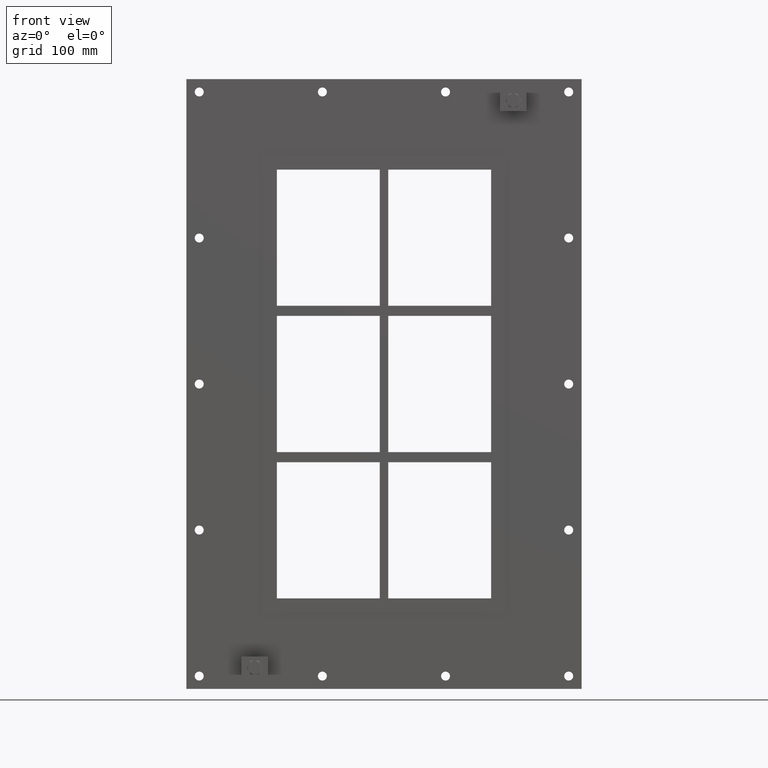
[diagram: clean part render]
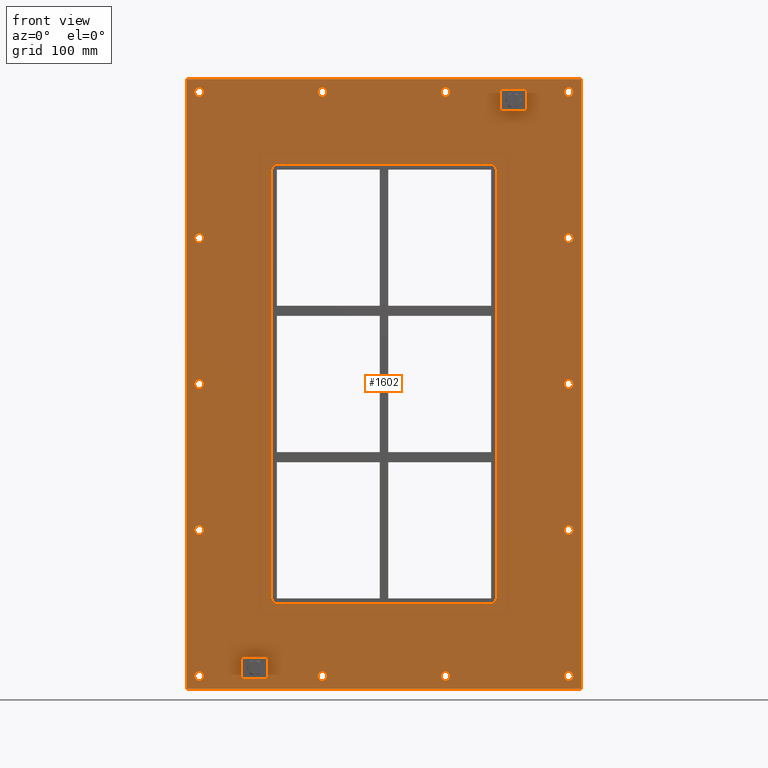
[diagram: same view with one face highlighted and labeled with its STEP entity id]
A machine part, front view. The second image highlights one B-rep face of the part: STEP entity #1602.
In plain terms, the highlighted planar face has unit normal (0, 1, 0).
Its self-contained STEP definition (entity closure, byte-faithful):
#84=CARTESIAN_POINT('',(-211.25000000000006,0.0,-342.25000000000011));
#85=VERTEX_POINT('',#84);
#86=CARTESIAN_POINT('',(-216.50000000000006,0.0,-342.25000000000011));
#87=DIRECTION('',(0.0,1.0,0.0));
#88=DIRECTION('',(1.0,0.0,0.0));
#89=AXIS2_PLACEMENT_3D('',#86,#87,#88);
#90=CIRCLE('',#89,5.25);
#91=EDGE_CURVE('',#85,#85,#90,.T.);
#112=CARTESIAN_POINT('',(221.64999999999998,0.0,-171.15000000000009));
#113=VERTEX_POINT('',#112);
#114=CARTESIAN_POINT('',(216.40000000000001,0.0,-171.15000000000009));
#115=DIRECTION('',(0.0,1.0,0.0));
#116=DIRECTION('',(1.0,0.0,0.0));
#117=AXIS2_PLACEMENT_3D('',#114,#115,#116);
#118=CIRCLE('',#117,5.25);
#119=EDGE_CURVE('',#113,#113,#118,.T.);
#140=CARTESIAN_POINT('',(-211.25000000000006,0.0,-171.15000000000009));
#141=VERTEX_POINT('',#140);
#142=CARTESIAN_POINT('',(-216.50000000000006,0.0,-171.15000000000009));
#143=DIRECTION('',(0.0,1.0,0.0));
#144=DIRECTION('',(1.0,0.0,0.0));
#145=AXIS2_PLACEMENT_3D('',#142,#143,#144);
#146=CIRCLE('',#145,5.25);
#147=EDGE_CURVE('',#141,#141,#146,.T.);
#168=CARTESIAN_POINT('',(221.64999999999998,0.0,-0.050000000000097));
#169=VERTEX_POINT('',#168);
#170=CARTESIAN_POINT('',(216.40000000000001,0.0,-0.050000000000097));
#171=DIRECTION('',(0.0,1.0,0.0));
#172=DIRECTION('',(1.0,0.0,0.0));
#173=AXIS2_PLACEMENT_3D('',#170,#171,#172);
#174=CIRCLE('',#173,5.25);
#175=EDGE_CURVE('',#169,#169,#174,.T.);
#196=CARTESIAN_POINT('',(-211.25000000000006,0.0,-0.050000000000097));
#197=VERTEX_POINT('',#196);
#198=CARTESIAN_POINT('',(-216.50000000000006,0.0,-0.050000000000097));
#199=DIRECTION('',(0.0,1.0,0.0));
#200=DIRECTION('',(1.0,0.0,0.0));
#201=AXIS2_PLACEMENT_3D('',#198,#199,#200);
#202=CIRCLE('',#201,5.25);
#203=EDGE_CURVE('',#197,#197,#202,.T.);
#224=CARTESIAN_POINT('',(221.64999999999998,0.0,171.0499999999999));
#225=VERTEX_POINT('',#224);
#226=CARTESIAN_POINT('',(216.40000000000001,0.0,171.0499999999999));
#227=DIRECTION('',(0.0,1.0,0.0));
#228=DIRECTION('',(1.0,0.0,0.0));
#229=AXIS2_PLACEMENT_3D('',#226,#227,#228);
#230=CIRCLE('',#229,5.25);
#231=EDGE_CURVE('',#225,#225,#230,.T.);
#252=CARTESIAN_POINT('',(-211.25000000000006,0.0,171.0499999999999));
#253=VERTEX_POINT('',#252);
#254=CARTESIAN_POINT('',(-216.50000000000006,0.0,171.0499999999999));
#255=DIRECTION('',(0.0,1.0,0.0));
#256=DIRECTION('',(1.0,0.0,0.0));
#257=AXIS2_PLACEMENT_3D('',#254,#255,#256);
#258=CIRCLE('',#257,5.25);
#259=EDGE_CURVE('',#253,#253,#258,.T.);
#280=CARTESIAN_POINT('',(-66.950000000000045,0.0,342.14999999999986));
#281=VERTEX_POINT('',#280);
#282=CARTESIAN_POINT('',(-72.200000000000017,0.0,342.14999999999986));
#283=DIRECTION('',(0.0,1.0,0.0));
#284=DIRECTION('',(1.0,0.0,0.0));
#285=AXIS2_PLACEMENT_3D('',#282,#283,#284);
#286=CIRCLE('',#285,5.25);
#287=EDGE_CURVE('',#281,#281,#286,.T.);
#308=CARTESIAN_POINT('',(-66.950000000000045,0.0,-342.25000000000011));
#309=VERTEX_POINT('',#308);
#310=CARTESIAN_POINT('',(-72.200000000000017,0.0,-342.25000000000011));
#311=DIRECTION('',(0.0,1.0,0.0));
#312=DIRECTION('',(1.0,0.0,0.0));
#313=AXIS2_PLACEMENT_3D('',#310,#311,#312);
#314=CIRCLE('',#313,5.25);
#315=EDGE_CURVE('',#309,#309,#314,.T.);
#336=CARTESIAN_POINT('',(77.34999999999998,0.0,342.14999999999986));
#337=VERTEX_POINT('',#336);
#338=CARTESIAN_POINT('',(72.099999999999994,0.0,342.14999999999986));
#339=DIRECTION('',(0.0,1.0,0.0));
#340=DIRECTION('',(1.0,0.0,0.0));
#341=AXIS2_PLACEMENT_3D('',#338,#339,#340);
#342=CIRCLE('',#341,5.25);
#343=EDGE_CURVE('',#337,#337,#342,.T.);
#364=CARTESIAN_POINT('',(77.34999999999998,0.0,-342.25000000000011));
#365=VERTEX_POINT('',#364);
#366=CARTESIAN_POINT('',(72.099999999999994,0.0,-342.25000000000011));
#367=DIRECTION('',(0.0,1.0,0.0));
#368=DIRECTION('',(1.0,0.0,0.0));
#369=AXIS2_PLACEMENT_3D('',#366,#367,#368);
#370=CIRCLE('',#369,5.25);
#371=EDGE_CURVE('',#365,#365,#370,.T.);
#392=CARTESIAN_POINT('',(221.64999999999998,0.0,-342.25000000000011));
#393=VERTEX_POINT('',#392);
#394=CARTESIAN_POINT('',(216.40000000000001,0.0,-342.25000000000011));
#395=DIRECTION('',(0.0,1.0,0.0));
#396=DIRECTION('',(1.0,0.0,0.0));
#397=AXIS2_PLACEMENT_3D('',#394,#395,#396);
#398=CIRCLE('',#397,5.25);
#399=EDGE_CURVE('',#393,#393,#398,.T.);
#420=CARTESIAN_POINT('',(-211.25000000000006,0.0,342.14999999999986));
#421=VERTEX_POINT('',#420);
#422=CARTESIAN_POINT('',(-216.50000000000006,0.0,342.14999999999986));
#423=DIRECTION('',(0.0,1.0,0.0));
#424=DIRECTION('',(1.0,0.0,0.0));
#425=AXIS2_PLACEMENT_3D('',#422,#423,#424);
#426=CIRCLE('',#425,5.25);
#427=EDGE_CURVE('',#421,#421,#426,.T.);
#448=CARTESIAN_POINT('',(221.64999999999998,0.0,342.14999999999986));
#449=VERTEX_POINT('',#448);
#450=CARTESIAN_POINT('',(216.40000000000001,0.0,342.14999999999986));
#451=DIRECTION('',(0.0,1.0,0.0));
#452=DIRECTION('',(1.0,0.0,0.0));
#453=AXIS2_PLACEMENT_3D('',#450,#451,#452);
#454=CIRCLE('',#453,5.25);
#455=EDGE_CURVE('',#449,#449,#454,.T.);
#1451=CARTESIAN_POINT('',(1.448240E-014,0.0,0.0));
#1452=DIRECTION('',(0.0,1.0,0.0));
#1453=DIRECTION('',(0.0,0.0,1.0));
#1454=AXIS2_PLACEMENT_3D('',#1451,#1452,#1453);
#1455=PLANE('',#1454);
#1456=CARTESIAN_POINT('',(-231.49999999999994,0.0,357.25));
#1457=VERTEX_POINT('',#1456);
#1458=CARTESIAN_POINT('',(231.5,0.0,357.25));
#1459=VERTEX_POINT('',#1458);
#1460=CARTESIAN_POINT('',(-231.49999999999994,0.0,357.25));
#1461=DIRECTION('',(1.0,0.0,0.0));
#1462=VECTOR('',#1461,463.0);
#1463=LINE('',#1460,#1462);
#1464=EDGE_CURVE('',#1457,#1459,#1463,.T.);
#1465=ORIENTED_EDGE('',*,*,#1464,.F.);
#1466=CARTESIAN_POINT('',(-231.49999999999994,0.0,-357.25));
#1467=VERTEX_POINT('',#1466);
#1468=CARTESIAN_POINT('',(-231.49999999999994,0.0,-357.25));
#1469=DIRECTION('',(0.0,0.0,1.0));
#1470=VECTOR('',#1469,714.5);
#1471=LINE('',#1468,#1470);
#1472=EDGE_CURVE('',#1467,#1457,#1471,.T.);
#1473=ORIENTED_EDGE('',*,*,#1472,.F.);
#1474=CARTESIAN_POINT('',(231.5,0.0,-357.25));
#1475=VERTEX_POINT('',#1474);
#1476=CARTESIAN_POINT('',(231.5,0.0,-357.25));
#1477=DIRECTION('',(-1.0,0.0,0.0));
#1478=VECTOR('',#1477,463.0);
#1479=LINE('',#1476,#1478);
#1480=EDGE_CURVE('',#1475,#1467,#1479,.T.);
#1481=ORIENTED_EDGE('',*,*,#1480,.F.);
#1482=CARTESIAN_POINT('',(231.5,0.0,357.25));
#1483=DIRECTION('',(0.0,0.0,-1.0));
#1484=VECTOR('',#1483,714.5);
#1485=LINE('',#1482,#1484);
#1486=EDGE_CURVE('',#1459,#1475,#1485,.T.);
#1487=ORIENTED_EDGE('',*,*,#1486,.F.);
#1488=EDGE_LOOP('',(#1465,#1473,#1481,#1487));
#1489=FACE_OUTER_BOUND('',#1488,.T.);
#1490=ORIENTED_EDGE('',*,*,#91,.T.);
#1491=EDGE_LOOP('',(#1490));
#1492=FACE_BOUND('',#1491,.T.);
#1493=ORIENTED_EDGE('',*,*,#119,.T.);
#1494=EDGE_LOOP('',(#1493));
#1495=FACE_BOUND('',#1494,.T.);
#1496=ORIENTED_EDGE('',*,*,#147,.T.);
#1497=EDGE_LOOP('',(#1496));
#1498=FACE_BOUND('',#1497,.T.);
#1499=ORIENTED_EDGE('',*,*,#175,.T.);
#1500=EDGE_LOOP('',(#1499));
#1501=FACE_BOUND('',#1500,.T.);
#1502=ORIENTED_EDGE('',*,*,#203,.T.);
#1503=EDGE_LOOP('',(#1502));
#1504=FACE_BOUND('',#1503,.T.);
#1505=ORIENTED_EDGE('',*,*,#231,.T.);
#1506=EDGE_LOOP('',(#1505));
#1507=FACE_BOUND('',#1506,.T.);
#1508=ORIENTED_EDGE('',*,*,#259,.T.);
#1509=EDGE_LOOP('',(#1508));
#1510=FACE_BOUND('',#1509,.T.);
#1511=ORIENTED_EDGE('',*,*,#287,.T.);
#1512=EDGE_LOOP('',(#1511));
#1513=FACE_BOUND('',#1512,.T.);
#1514=ORIENTED_EDGE('',*,*,#315,.T.);
#1515=EDGE_LOOP('',(#1514));
#1516=FACE_BOUND('',#1515,.T.);
#1517=ORIENTED_EDGE('',*,*,#343,.T.);
#1518=EDGE_LOOP('',(#1517));
#1519=FACE_BOUND('',#1518,.T.);
#1520=ORIENTED_EDGE('',*,*,#371,.T.);
#1521=EDGE_LOOP('',(#1520));
#1522=FACE_BOUND('',#1521,.T.);
#1523=ORIENTED_EDGE('',*,*,#399,.T.);
#1524=EDGE_LOOP('',(#1523));
#1525=FACE_BOUND('',#1524,.T.);
#1526=ORIENTED_EDGE('',*,*,#427,.T.);
#1527=EDGE_LOOP('',(#1526));
#1528=FACE_BOUND('',#1527,.T.);
#1529=ORIENTED_EDGE('',*,*,#455,.T.);
#1530=EDGE_LOOP('',(#1529));
#1531=FACE_BOUND('',#1530,.T.);
#1532=CARTESIAN_POINT('',(-125.5,0.0,257.25));
#1533=VERTEX_POINT('',#1532);
#1534=CARTESIAN_POINT('',(-131.5,0.0,251.24999999999997));
#1535=VERTEX_POINT('',#1534);
#1536=CARTESIAN_POINT('',(-125.5,0.0,251.24999999999997));
#1537=DIRECTION('',(0.0,-1.0,0.0));
#1538=DIRECTION('',(-0.707106781186548,0.0,0.707106781186548));
#1539=AXIS2_PLACEMENT_3D('',#1536,#1537,#1538);
#1540=CIRCLE('',#1539,6.000000000000002);
#1541=EDGE_CURVE('',#1533,#1535,#1540,.T.);
#1542=ORIENTED_EDGE('',*,*,#1541,.F.);
#1543=CARTESIAN_POINT('',(125.5,0.0,257.25));
#1544=VERTEX_POINT('',#1543);
#1545=CARTESIAN_POINT('',(125.5,0.0,257.25));
#1546=DIRECTION('',(-1.0,0.0,0.0));
#1547=VECTOR('',#1546,251.0);
#1548=LINE('',#1545,#1547);
#1549=EDGE_CURVE('',#1544,#1533,#1548,.T.);
#1550=ORIENTED_EDGE('',*,*,#1549,.F.);
#1551=CARTESIAN_POINT('',(131.5,0.0,251.24999999999997));
#1552=VERTEX_POINT('',#1551);
#1553=CARTESIAN_POINT('',(125.5,0.0,251.24999999999997));
#1554=DIRECTION('',(0.0,-1.0,0.0));
#1555=DIRECTION('',(0.707106781186548,0.0,0.707106781186548));
#1556=AXIS2_PLACEMENT_3D('',#1553,#1554,#1555);
#1557=CIRCLE('',#1556,6.000000000000002);
#1558=EDGE_CURVE('',#1552,#1544,#1557,.T.);
#1559=ORIENTED_EDGE('',*,*,#1558,.F.);
#1560=CARTESIAN_POINT('',(131.5,0.0,-251.25000000000003));
#1561=VERTEX_POINT('',#1560);
#1562=CARTESIAN_POINT('',(131.5,0.0,-251.25000000000006));
#1563=DIRECTION('',(0.0,0.0,1.0));
#1564=VECTOR('',#1563,502.5);
#1565=LINE('',#1562,#1564);
#1566=EDGE_CURVE('',#1561,#1552,#1565,.T.);
#1567=ORIENTED_EDGE('',*,*,#1566,.F.);
#1568=CARTESIAN_POINT('',(125.5,0.0,-257.25000000000006));
#1569=VERTEX_POINT('',#1568);
#1570=CARTESIAN_POINT('',(125.5,0.0,-251.25000000000003));
#1571=DIRECTION('',(0.0,-1.0,0.0));
#1572=DIRECTION('',(0.707106781186548,0.0,-0.707106781186548));
#1573=AXIS2_PLACEMENT_3D('',#1570,#1571,#1572);
#1574=CIRCLE('',#1573,6.000000000000002);
#1575=EDGE_CURVE('',#1569,#1561,#1574,.T.);
#1576=ORIENTED_EDGE('',*,*,#1575,.F.);
#1577=CARTESIAN_POINT('',(-125.5,0.0,-257.25000000000006));
#1578=VERTEX_POINT('',#1577);
#1579=CARTESIAN_POINT('',(-125.49999999999999,0.0,-257.25000000000006));
#1580=DIRECTION('',(1.0,0.0,0.0));
#1581=VECTOR('',#1580,251.0);
#1582=LINE('',#1579,#1581);
#1583=EDGE_CURVE('',#1578,#1569,#1582,.T.);
#1584=ORIENTED_EDGE('',*,*,#1583,.F.);
#1585=CARTESIAN_POINT('',(-131.5,0.0,-251.25000000000003));
#1586=VERTEX_POINT('',#1585);
#1587=CARTESIAN_POINT('',(-125.5,0.0,-251.25000000000003));
#1588=DIRECTION('',(0.0,-1.0,0.0));
#1589=DIRECTION('',(-0.707106781186548,0.0,-0.707106781186548));
#1590=AXIS2_PLACEMENT_3D('',#1587,#1588,#1589);
#1591=CIRCLE('',#1590,6.000000000000002);
#1592=EDGE_CURVE('',#1586,#1578,#1591,.T.);
#1593=ORIENTED_EDGE('',*,*,#1592,.F.);
#1594=CARTESIAN_POINT('',(-131.5,0.0,251.24999999999997));
#1595=DIRECTION('',(0.0,0.0,-1.0));
#1596=VECTOR('',#1595,502.5);
#1597=LINE('',#1594,#1596);
#1598=EDGE_CURVE('',#1535,#1586,#1597,.T.);
#1599=ORIENTED_EDGE('',*,*,#1598,.F.);
#1600=EDGE_LOOP('',(#1542,#1550,#1559,#1567,#1576,#1584,#1593,#1599));
#1601=FACE_BOUND('',#1600,.T.);
#1602=ADVANCED_FACE('',(#1489,#1492,#1495,#1498,#1501,#1504,#1507,#1510,#1513,#1516,#1519,#1522,#1525,#1528,#1531,#1601),#1455,.F.);